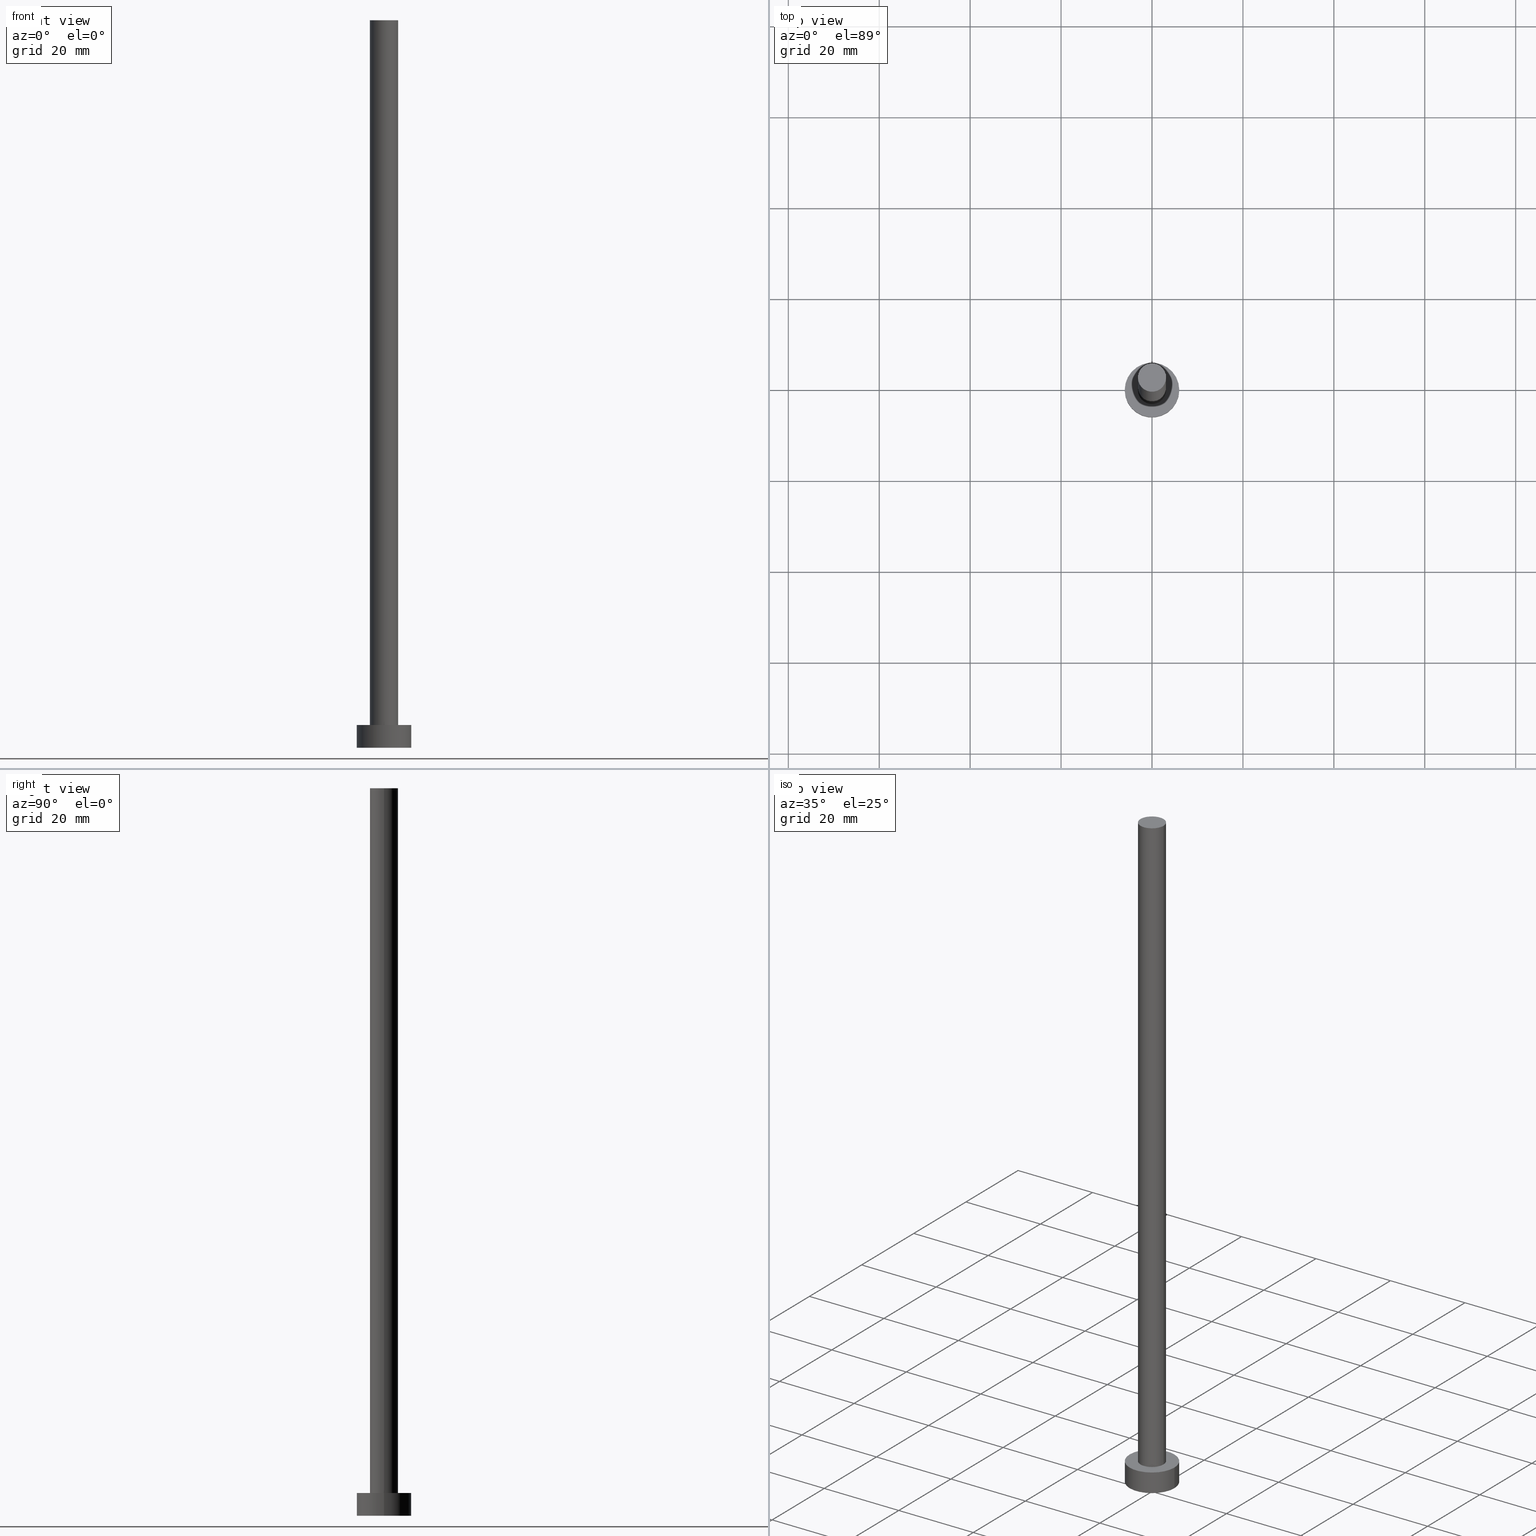
[diagram: canonical four-view strip — front | top / right | iso, engineering-drawing reading convention]
A machine part, canonical four-view strip (front | top / right | iso — engineering-drawing reading convention). The complete STEP part file that produces these views, byte-faithful:
ISO-10303-21;
HEADER;
FILE_DESCRIPTION (( 'STEP AP203' ),
    '1' );
FILE_NAME ('49f9.STEP',
    '2023-02-13T12:36:10',
    ( '' ),
    ( '' ),
    'SwSTEP 2.0',
    'SolidWorks 2019',
    '' );
FILE_SCHEMA (( 'CONFIG_CONTROL_DESIGN' ));
ENDSEC;

DATA;
#1 = CARTESIAN_POINT ( 'NONE',  ( -3.100000000000000089, 0.000000000000000000, 160.0000000000000000 ) ) ;
#2 = AXIS2_PLACEMENT_3D ( 'NONE', #182, #94, #78 ) ;
#3 = CC_DESIGN_DATE_AND_TIME_ASSIGNMENT ( #139, #231, ( #184 ) ) ;
#4 = FACE_OUTER_BOUND ( 'NONE', #195, .T. ) ;
#5 = DIRECTION ( 'NONE',  ( 1.000000000000000000, 0.000000000000000000, 0.000000000000000000 ) ) ;
#6 = CARTESIAN_POINT ( 'NONE',  ( 0.000000000000000000, 0.000000000000000000, 5.000000000000000000 ) ) ;
#7 = CC_DESIGN_PERSON_AND_ORGANIZATION_ASSIGNMENT ( #189, #10, ( #212 ) ) ;
#8 = FACE_BOUND ( 'NONE', #253, .T. ) ;
#9 = COORDINATED_UNIVERSAL_TIME_OFFSET ( 1, 0, .AHEAD. ) ;
#10 = PERSON_AND_ORGANIZATION_ROLE ( 'creator' ) ;
#11 =( NAMED_UNIT ( * ) PLANE_ANGLE_UNIT ( ) SI_UNIT ( $, .RADIAN. ) );
#12 = CIRCLE ( 'NONE', #243, 6.000000000000000888 ) ;
#13 = PERSON_AND_ORGANIZATION ( #113, #226 ) ;
#14 = LOCAL_TIME ( 13, 36, 10.00000000000000000, #55 ) ;
#15 = ORIENTED_EDGE ( 'NONE', *, *, #164, .F. ) ;
#16 = ORIENTED_EDGE ( 'NONE', *, *, #188, .F. ) ;
#17 = CARTESIAN_POINT ( 'NONE',  ( -6.000000000000000888, 0.000000000000000000, 5.000000000000000000 ) ) ;
#18 = EDGE_LOOP ( 'NONE', ( #87, #215 ) ) ;
#19 = CARTESIAN_POINT ( 'NONE',  ( 0.000000000000000000, 0.000000000000000000, 5.000000000000000000 ) ) ;
#20 = DIRECTION ( 'NONE',  ( 0.000000000000000000, 0.000000000000000000, 1.000000000000000000 ) ) ;
#21 = CARTESIAN_POINT ( 'NONE',  ( 0.000000000000000000, 0.000000000000000000, 5.000000000000000000 ) ) ;
#22 = LOCAL_TIME ( 13, 36, 10.00000000000000000, #9 ) ;
#23 = CARTESIAN_POINT ( 'NONE',  ( 6.000000000000000888, 7.347880794884120722E-16, 5.000000000000000000 ) ) ;
#24 = DIRECTION ( 'NONE',  ( 1.000000000000000000, 0.000000000000000000, 0.000000000000000000 ) ) ;
#25 = CARTESIAN_POINT ( 'NONE',  ( -3.100000000000000089, 0.000000000000000000, 5.000000000000000000 ) ) ;
#26 = AXIS2_PLACEMENT_3D ( 'NONE', #199, #43, #111 ) ;
#27 = CC_DESIGN_APPROVAL ( #190, ( #201 ) ) ;
#28 = APPROVAL_STATUS ( 'not_yet_approved' ) ;
#29 = DIRECTION ( 'NONE',  ( -0.000000000000000000, -0.000000000000000000, -1.000000000000000000 ) ) ;
#30 = FACE_OUTER_BOUND ( 'NONE', #174, .T. ) ;
#31 = PERSON_AND_ORGANIZATION_ROLE ( 'creator' ) ;
#32 = CC_DESIGN_PERSON_AND_ORGANIZATION_ASSIGNMENT ( #207, #31, ( #184 ) ) ;
#33 = AXIS2_PLACEMENT_3D ( 'NONE', #21, #202, #224 ) ;
#34 = AXIS2_PLACEMENT_3D ( 'NONE', #138, #145, #185 ) ;
#35 = ORIENTED_EDGE ( 'NONE', *, *, #198, .T. ) ;
#36 = DATE_AND_TIME ( #124, #14 ) ;
#37 = ORIENTED_EDGE ( 'NONE', *, *, #197, .T. ) ;
#38 = APPROVAL_DATE_TIME ( #36, #190 ) ;
#39 = ORIENTED_EDGE ( 'NONE', *, *, #140, .T. ) ;
#40 = CARTESIAN_POINT ( 'NONE',  ( -6.000000000000000888, 0.000000000000000000, 0.000000000000000000 ) ) ;
#41 = ORIENTED_EDGE ( 'NONE', *, *, #192, .T. ) ;
#42 = FACE_OUTER_BOUND ( 'NONE', #107, .T. ) ;
#43 = DIRECTION ( 'NONE',  ( 0.000000000000000000, 0.000000000000000000, 1.000000000000000000 ) ) ;
#44 = DIRECTION ( 'NONE',  ( -0.000000000000000000, -0.000000000000000000, -1.000000000000000000 ) ) ;
#45 = CARTESIAN_POINT ( 'NONE',  ( 0.000000000000000000, 0.000000000000000000, 160.0000000000000000 ) ) ;
#46 = CIRCLE ( 'NONE', #206, 6.000000000000000888 ) ;
#47 = DIRECTION ( 'NONE',  ( 0.000000000000000000, 0.000000000000000000, 1.000000000000000000 ) ) ;
#48 =( GEOMETRIC_REPRESENTATION_CONTEXT ( 3 ) GLOBAL_UNCERTAINTY_ASSIGNED_CONTEXT ( ( #156 ) ) GLOBAL_UNIT_ASSIGNED_CONTEXT ( ( #251, #11, #84 ) ) REPRESENTATION_CONTEXT ( 'NONE', 'WORKASPACE' ) );
#49 = PERSON_AND_ORGANIZATION ( #113, #226 ) ;
#50 = CARTESIAN_POINT ( 'NONE',  ( 0.000000000000000000, 0.000000000000000000, 160.0000000000000000 ) ) ;
#51 = DATE_AND_TIME ( #194, #97 ) ;
#52 = CC_DESIGN_APPROVAL ( #168, ( #212 ) ) ;
#53 = COORDINATED_UNIVERSAL_TIME_OFFSET ( 1, 0, .AHEAD. ) ;
#54 = VERTEX_POINT ( 'NONE', #17 ) ;
#55 = COORDINATED_UNIVERSAL_TIME_OFFSET ( 1, 0, .AHEAD. ) ;
#56 = VECTOR ( 'NONE', #44, 1000.000000000000000 ) ;
#57 = CIRCLE ( 'NONE', #26, 3.100000000000000089 ) ;
#58 = DIRECTION ( 'NONE',  ( 0.000000000000000000, 0.000000000000000000, 1.000000000000000000 ) ) ;
#59 = CARTESIAN_POINT ( 'NONE',  ( 0.000000000000000000, 0.000000000000000000, 0.000000000000000000 ) ) ;
#60 = LINE ( 'NONE', #93, #115 ) ;
#61 = DIRECTION ( 'NONE',  ( 0.000000000000000000, 0.000000000000000000, 1.000000000000000000 ) ) ;
#62 = FACE_OUTER_BOUND ( 'NONE', #18, .T. ) ;
#63 = LOCAL_TIME ( 13, 36, 10.00000000000000000, #248 ) ;
#64 = CALENDAR_DATE ( 2023, 13, 2 ) ;
#65 = CC_DESIGN_DATE_AND_TIME_ASSIGNMENT ( #51, #214, ( #201 ) ) ;
#66 = PERSON_AND_ORGANIZATION ( #113, #226 ) ;
#67 = APPROVAL_DATE_TIME ( #167, #105 ) ;
#68 = DESIGN_CONTEXT ( 'detailed design', #71, 'design' ) ;
#69 = ORIENTED_EDGE ( 'NONE', *, *, #134, .F. ) ;
#70 = VERTEX_POINT ( 'NONE', #40 ) ;
#71 = APPLICATION_CONTEXT ( 'configuration controlled 3d designs of mechanical parts and assemblies' ) ;
#72 = ORIENTED_EDGE ( 'NONE', *, *, #130, .F. ) ;
#73 = VECTOR ( 'NONE', #225, 1000.000000000000000 ) ;
#74 = AXIS2_PLACEMENT_3D ( 'NONE', #116, #209, #211 ) ;
#75 = LINE ( 'NONE', #109, #56 ) ;
#76 = PLANE ( 'NONE',  #119 ) ;
#77 = PRODUCT ( '49f9', '49f9', '', ( #96 ) ) ;
#78 = DIRECTION ( 'NONE',  ( 1.000000000000000000, 0.000000000000000000, 0.000000000000000000 ) ) ;
#79 = CARTESIAN_POINT ( 'NONE',  ( 0.000000000000000000, 0.000000000000000000, 5.000000000000000000 ) ) ;
#80 = CARTESIAN_POINT ( 'NONE',  ( 0.000000000000000000, 0.000000000000000000, 160.0000000000000000 ) ) ;
#81 = CALENDAR_DATE ( 2023, 13, 2 ) ;
#82 = CALENDAR_DATE ( 2023, 13, 2 ) ;
#83 = APPROVAL_STATUS ( 'not_yet_approved' ) ;
#84 =( NAMED_UNIT ( * ) SI_UNIT ( $, .STERADIAN. ) SOLID_ANGLE_UNIT ( ) );
#85 = AXIS2_PLACEMENT_3D ( 'NONE', #158, #47, #241 ) ;
#86 = ORIENTED_EDGE ( 'NONE', *, *, #219, .T. ) ;
#87 = ORIENTED_EDGE ( 'NONE', *, *, #208, .T. ) ;
#88 = EDGE_CURVE ( 'NONE', #54, #123, #12, .T. ) ;
#89 = ORIENTED_EDGE ( 'NONE', *, *, #208, .F. ) ;
#90 = DIRECTION ( 'NONE',  ( 1.000000000000000000, 0.000000000000000000, -0.000000000000000000 ) ) ;
#91 = CARTESIAN_POINT ( 'NONE',  ( 3.100000000000000089, 3.796405077356794918E-16, 160.0000000000000000 ) ) ;
#92 = DIRECTION ( 'NONE',  ( 0.000000000000000000, 0.000000000000000000, 1.000000000000000000 ) ) ;
#93 = CARTESIAN_POINT ( 'NONE',  ( -3.100000000000000089, 0.000000000000000000, 160.0000000000000000 ) ) ;
#94 = DIRECTION ( 'NONE',  ( 0.000000000000000000, 0.000000000000000000, 1.000000000000000000 ) ) ;
#95 = PERSON_AND_ORGANIZATION_ROLE ( 'design_owner' ) ;
#96 = MECHANICAL_CONTEXT ( 'NONE', #217, 'mechanical' ) ;
#97 = LOCAL_TIME ( 13, 36, 10.00000000000000000, #53 ) ;
#98 = APPROVAL_DATE_TIME ( #169, #168 ) ;
#99 = CC_DESIGN_PERSON_AND_ORGANIZATION_ASSIGNMENT ( #233, #101, ( #201 ) ) ;
#100 = LOCAL_TIME ( 13, 36, 10.00000000000000000, #118 ) ;
#101 = PERSON_AND_ORGANIZATION_ROLE ( 'classification_officer' ) ;
#102 = ORIENTED_EDGE ( 'NONE', *, *, #88, .F. ) ;
#103 = ADVANCED_FACE ( 'NONE', ( #8, #137 ), #76, .T. ) ;
#104 = VERTEX_POINT ( 'NONE', #25 ) ;
#105 = APPROVAL ( #28, 'NEUR�EN�' ) ;
#106 = APPROVAL_PERSON_ORGANIZATION ( #13, #190, #235 ) ;
#107 = EDGE_LOOP ( 'NONE', ( #69, #102, #125, #153 ) ) ;
#108 = ADVANCED_FACE ( 'NONE', ( #62 ), #240, .T. ) ;
#109 = CARTESIAN_POINT ( 'NONE',  ( 6.000000000000000888, 7.347880794884120722E-16, 5.000000000000000000 ) ) ;
#110 = CIRCLE ( 'NONE', #147, 3.100000000000000089 ) ;
#111 = DIRECTION ( 'NONE',  ( 1.000000000000000000, 0.000000000000000000, 0.000000000000000000 ) ) ;
#112 = CARTESIAN_POINT ( 'NONE',  ( 0.000000000000000000, 0.000000000000000000, 5.000000000000000000 ) ) ;
#113 = PERSON ( 'NEUR�EN�', 'NEUR�EN�', 'NEUR�EN�', ('NEUR�EN�'), ('NEUR�EN�'), ('NEUR�EN�') ) ;
#114 = DIRECTION ( 'NONE',  ( 1.000000000000000000, 0.000000000000000000, 0.000000000000000000 ) ) ;
#115 = VECTOR ( 'NONE', #132, 1000.000000000000000 ) ;
#116 = CARTESIAN_POINT ( 'NONE',  ( 0.000000000000000000, 0.000000000000000000, 0.000000000000000000 ) ) ;
#117 = APPROVAL_ROLE ( '' ) ;
#118 = COORDINATED_UNIVERSAL_TIME_OFFSET ( 1, 0, .AHEAD. ) ;
#119 = AXIS2_PLACEMENT_3D ( 'NONE', #6, #92, #90 ) ;
#120 = SHAPE_DEFINITION_REPRESENTATION ( #157, #239 ) ;
#121 = VERTEX_POINT ( 'NONE', #200 ) ;
#122 = CIRCLE ( 'NONE', #128, 3.100000000000000089 ) ;
#123 = VERTEX_POINT ( 'NONE', #23 ) ;
#124 = CALENDAR_DATE ( 2023, 13, 2 ) ;
#125 = ORIENTED_EDGE ( 'NONE', *, *, #144, .T. ) ;
#126 = CLOSED_SHELL ( 'NONE', ( #249, #142, #154, #103, #170, #223, #108 ) ) ;
#127 = VERTEX_POINT ( 'NONE', #1 ) ;
#128 = AXIS2_PLACEMENT_3D ( 'NONE', #221, #20, #5 ) ;
#129 = ORIENTED_EDGE ( 'NONE', *, *, #197, .F. ) ;
#130 = EDGE_CURVE ( 'NONE', #151, #127, #110, .T. ) ;
#131 = DIRECTION ( 'NONE',  ( 1.000000000000000000, 0.000000000000000000, 0.000000000000000000 ) ) ;
#132 = DIRECTION ( 'NONE',  ( -0.000000000000000000, -0.000000000000000000, -1.000000000000000000 ) ) ;
#133 = VECTOR ( 'NONE', #246, 1000.000000000000000 ) ;
#134 = EDGE_CURVE ( 'NONE', #123, #236, #75, .T. ) ;
#135 = CARTESIAN_POINT ( 'NONE',  ( -6.000000000000000888, 0.000000000000000000, 5.000000000000000000 ) ) ;
#136 = DIRECTION ( 'NONE',  ( -1.000000000000000000, 0.000000000000000000, 0.000000000000000000 ) ) ;
#137 = FACE_OUTER_BOUND ( 'NONE', #216, .T. ) ;
#138 = CARTESIAN_POINT ( 'NONE',  ( 0.000000000000000000, 0.000000000000000000, 160.0000000000000000 ) ) ;
#139 = DATE_AND_TIME ( #64, #63 ) ;
#140 = EDGE_CURVE ( 'NONE', #123, #54, #46, .T. ) ;
#141 = CYLINDRICAL_SURFACE ( 'NONE', #149, 3.100000000000000089 ) ;
#142 = ADVANCED_FACE ( 'NONE', ( #163 ), #155, .T. ) ;
#143 = PERSON_AND_ORGANIZATION_ROLE ( 'design_supplier' ) ;
#144 = EDGE_CURVE ( 'NONE', #54, #70, #218, .T. ) ;
#145 = DIRECTION ( 'NONE',  ( -0.000000000000000000, -0.000000000000000000, -1.000000000000000000 ) ) ;
#146 = ORIENTED_EDGE ( 'NONE', *, *, #88, .T. ) ;
#147 = AXIS2_PLACEMENT_3D ( 'NONE', #80, #58, #131 ) ;
#148 = ORIENTED_EDGE ( 'NONE', *, *, #198, .F. ) ;
#149 = AXIS2_PLACEMENT_3D ( 'NONE', #50, #29, #172 ) ;
#150 = APPROVAL_STATUS ( 'not_yet_approved' ) ;
#151 = VERTEX_POINT ( 'NONE', #179 ) ;
#152 = ORIENTED_EDGE ( 'NONE', *, *, #219, .F. ) ;
#153 = ORIENTED_EDGE ( 'NONE', *, *, #188, .T. ) ;
#154 = ADVANCED_FACE ( 'NONE', ( #42 ), #180, .T. ) ;
#155 = CYLINDRICAL_SURFACE ( 'NONE', #220, 6.000000000000000888 ) ;
#156 = UNCERTAINTY_MEASURE_WITH_UNIT (LENGTH_MEASURE( 1.000000000000000082E-05 ), #251, 'distance_accuracy_value', 'NONE');
#157 = PRODUCT_DEFINITION_SHAPE ( 'NONE', 'NONE',  #184 ) ;
#158 = CARTESIAN_POINT ( 'NONE',  ( 0.000000000000000000, 0.000000000000000000, 0.000000000000000000 ) ) ;
#159 = MANIFOLD_SOLID_BREP ( 'P�idat vysunut�m3', #126 ) ;
#160 = CARTESIAN_POINT ( 'NONE',  ( 0.000000000000000000, 0.000000000000000000, 5.000000000000000000 ) ) ;
#161 = CC_DESIGN_PERSON_AND_ORGANIZATION_ASSIGNMENT ( #66, #143, ( #212 ) ) ;
#162 = DIRECTION ( 'NONE',  ( -0.000000000000000000, -0.000000000000000000, -1.000000000000000000 ) ) ;
#163 = FACE_OUTER_BOUND ( 'NONE', #238, .T. ) ;
#164 = EDGE_CURVE ( 'NONE', #151, #121, #181, .T. ) ;
#165 = AXIS2_PLACEMENT_3D ( 'NONE', #45, #222, #245 ) ;
#166 = CIRCLE ( 'NONE', #173, 3.100000000000000089 ) ;
#167 = DATE_AND_TIME ( #81, #100 ) ;
#168 = APPROVAL ( #83, 'NEUR�EN�' ) ;
#169 = DATE_AND_TIME ( #82, #22 ) ;
#170 = ADVANCED_FACE ( 'NONE', ( #4 ), #204, .F. ) ;
#171 = APPLICATION_PROTOCOL_DEFINITION ( 'international standard', 'config_control_design', 1994, #217 ) ;
#172 = DIRECTION ( 'NONE',  ( -1.000000000000000000, 0.000000000000000000, 0.000000000000000000 ) ) ;
#173 = AXIS2_PLACEMENT_3D ( 'NONE', #160, #244, #183 ) ;
#174 = EDGE_LOOP ( 'NONE', ( #15, #89, #41, #86 ) ) ;
#175 = DIRECTION ( 'NONE',  ( 0.000000000000000000, 0.000000000000000000, 1.000000000000000000 ) ) ;
#176 = CIRCLE ( 'NONE', #230, 6.000000000000000888 ) ;
#177 = DIRECTION ( 'NONE',  ( 1.000000000000000000, 0.000000000000000000, 0.000000000000000000 ) ) ;
#178 = CC_DESIGN_APPROVAL ( #105, ( #184 ) ) ;
#179 = CARTESIAN_POINT ( 'NONE',  ( 3.100000000000000089, 3.796405077356794918E-16, 160.0000000000000000 ) ) ;
#180 = CYLINDRICAL_SURFACE ( 'NONE', #33, 6.000000000000000888 ) ;
#181 = LINE ( 'NONE', #91, #73 ) ;
#182 = CARTESIAN_POINT ( 'NONE',  ( 0.000000000000000000, 0.000000000000000000, 0.000000000000000000 ) ) ;
#183 = DIRECTION ( 'NONE',  ( 1.000000000000000000, 0.000000000000000000, 0.000000000000000000 ) ) ;
#184 = PRODUCT_DEFINITION ( 'NEZN�M�', '', #212, #68 ) ;
#185 = DIRECTION ( 'NONE',  ( -1.000000000000000000, 0.000000000000000000, 0.000000000000000000 ) ) ;
#186 = APPROVAL_PERSON_ORGANIZATION ( #232, #105, #210 ) ;
#187 = PERSON_AND_ORGANIZATION ( #113, #226 ) ;
#188 = EDGE_CURVE ( 'NONE', #70, #236, #176, .T. ) ;
#189 = PERSON_AND_ORGANIZATION ( #113, #226 ) ;
#190 = APPROVAL ( #150, 'NEUR�EN�' ) ;
#191 = SECURITY_CLASSIFICATION_LEVEL ( 'unclassified' ) ;
#192 = EDGE_CURVE ( 'NONE', #127, #104, #60, .T. ) ;
#193 = EDGE_LOOP ( 'NONE', ( #72, #196, #37, #237 ) ) ;
#194 = CALENDAR_DATE ( 2023, 13, 2 ) ;
#195 = EDGE_LOOP ( 'NONE', ( #16, #148 ) ) ;
#196 = ORIENTED_EDGE ( 'NONE', *, *, #164, .T. ) ;
#197 = EDGE_CURVE ( 'NONE', #121, #104, #122, .T. ) ;
#198 = EDGE_CURVE ( 'NONE', #236, #70, #254, .T. ) ;
#199 = CARTESIAN_POINT ( 'NONE',  ( 0.000000000000000000, 0.000000000000000000, 160.0000000000000000 ) ) ;
#200 = CARTESIAN_POINT ( 'NONE',  ( 3.100000000000000089, 3.796405077356794918E-16, 5.000000000000000000 ) ) ;
#201 = SECURITY_CLASSIFICATION ( '', '', #191 ) ;
#202 = DIRECTION ( 'NONE',  ( -0.000000000000000000, -0.000000000000000000, -1.000000000000000000 ) ) ;
#203 = PRODUCT_RELATED_PRODUCT_CATEGORY ( 'detail', '', ( #77 ) ) ;
#204 = PLANE ( 'NONE',  #85 ) ;
#205 = DIRECTION ( 'NONE',  ( 0.000000000000000000, 0.000000000000000000, 1.000000000000000000 ) ) ;
#206 = AXIS2_PLACEMENT_3D ( 'NONE', #112, #61, #114 ) ;
#207 = PERSON_AND_ORGANIZATION ( #113, #226 ) ;
#208 = EDGE_CURVE ( 'NONE', #127, #151, #57, .T. ) ;
#209 = DIRECTION ( 'NONE',  ( 0.000000000000000000, 0.000000000000000000, 1.000000000000000000 ) ) ;
#210 = APPROVAL_ROLE ( '' ) ;
#211 = DIRECTION ( 'NONE',  ( 1.000000000000000000, 0.000000000000000000, 0.000000000000000000 ) ) ;
#212 = PRODUCT_DEFINITION_FORMATION_WITH_SPECIFIED_SOURCE ( 'LIBOVOLN�', '', #77, .NOT_KNOWN. ) ;
#213 = ORIENTED_EDGE ( 'NONE', *, *, #144, .F. ) ;
#214 = DATE_TIME_ROLE ( 'classification_date' ) ;
#215 = ORIENTED_EDGE ( 'NONE', *, *, #130, .T. ) ;
#216 = EDGE_LOOP ( 'NONE', ( #146, #39 ) ) ;
#217 = APPLICATION_CONTEXT ( 'configuration controlled 3d designs of mechanical parts and assemblies' ) ;
#218 = LINE ( 'NONE', #135, #133 ) ;
#219 = EDGE_CURVE ( 'NONE', #104, #121, #166, .T. ) ;
#220 = AXIS2_PLACEMENT_3D ( 'NONE', #79, #162, #136 ) ;
#221 = CARTESIAN_POINT ( 'NONE',  ( 0.000000000000000000, 0.000000000000000000, 5.000000000000000000 ) ) ;
#222 = DIRECTION ( 'NONE',  ( 0.000000000000000000, 0.000000000000000000, 1.000000000000000000 ) ) ;
#223 = ADVANCED_FACE ( 'NONE', ( #30 ), #229, .T. ) ;
#224 = DIRECTION ( 'NONE',  ( -1.000000000000000000, 0.000000000000000000, 0.000000000000000000 ) ) ;
#225 = DIRECTION ( 'NONE',  ( -0.000000000000000000, -0.000000000000000000, -1.000000000000000000 ) ) ;
#226 = ORGANIZATION ( 'NEUR�EN�', 'NEUR�EN�', '' ) ;
#227 = CC_DESIGN_SECURITY_CLASSIFICATION ( #201, ( #212 ) ) ;
#228 = FACE_OUTER_BOUND ( 'NONE', #193, .T. ) ;
#229 = CYLINDRICAL_SURFACE ( 'NONE', #34, 3.100000000000000089 ) ;
#230 = AXIS2_PLACEMENT_3D ( 'NONE', #59, #205, #24 ) ;
#231 = DATE_TIME_ROLE ( 'creation_date' ) ;
#232 = PERSON_AND_ORGANIZATION ( #113, #226 ) ;
#233 = PERSON_AND_ORGANIZATION ( #113, #226 ) ;
#234 = ORIENTED_EDGE ( 'NONE', *, *, #140, .F. ) ;
#235 = APPROVAL_ROLE ( '' ) ;
#236 = VERTEX_POINT ( 'NONE', #250 ) ;
#237 = ORIENTED_EDGE ( 'NONE', *, *, #192, .F. ) ;
#238 = EDGE_LOOP ( 'NONE', ( #234, #255, #35, #213 ) ) ;
#239 = ADVANCED_BREP_SHAPE_REPRESENTATION ( '49f9', ( #159, #74 ), #48 ) ;
#240 = PLANE ( 'NONE',  #165 ) ;
#241 = DIRECTION ( 'NONE',  ( 1.000000000000000000, 0.000000000000000000, -0.000000000000000000 ) ) ;
#242 = CC_DESIGN_PERSON_AND_ORGANIZATION_ASSIGNMENT ( #187, #95, ( #77 ) ) ;
#243 = AXIS2_PLACEMENT_3D ( 'NONE', #19, #175, #177 ) ;
#244 = DIRECTION ( 'NONE',  ( 0.000000000000000000, 0.000000000000000000, 1.000000000000000000 ) ) ;
#245 = DIRECTION ( 'NONE',  ( 1.000000000000000000, 0.000000000000000000, -0.000000000000000000 ) ) ;
#246 = DIRECTION ( 'NONE',  ( -0.000000000000000000, -0.000000000000000000, -1.000000000000000000 ) ) ;
#247 = APPROVAL_PERSON_ORGANIZATION ( #49, #168, #117 ) ;
#248 = COORDINATED_UNIVERSAL_TIME_OFFSET ( 1, 0, .AHEAD. ) ;
#249 = ADVANCED_FACE ( 'NONE', ( #228 ), #141, .T. ) ;
#250 = CARTESIAN_POINT ( 'NONE',  ( 6.000000000000000888, 7.347880794884120722E-16, 0.000000000000000000 ) ) ;
#251 =( LENGTH_UNIT ( ) NAMED_UNIT ( * ) SI_UNIT ( .MILLI., .METRE. ) );
#252 = APPLICATION_PROTOCOL_DEFINITION ( 'international standard', 'config_control_design', 1994, #71 ) ;
#253 = EDGE_LOOP ( 'NONE', ( #152, #129 ) ) ;
#254 = CIRCLE ( 'NONE', #2, 6.000000000000000888 ) ;
#255 = ORIENTED_EDGE ( 'NONE', *, *, #134, .T. ) ;
ENDSEC;
END-ISO-10303-21;
